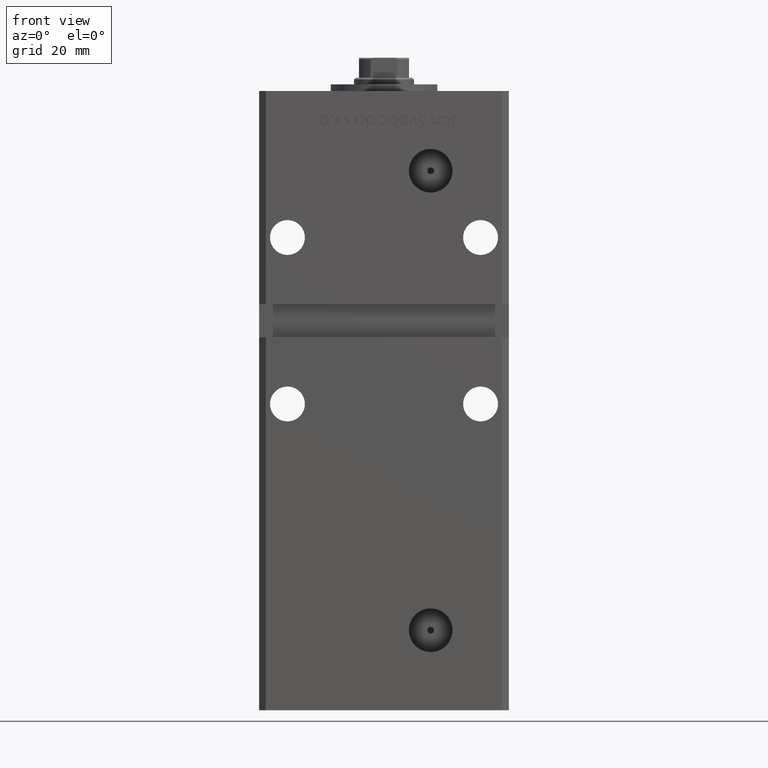
[diagram: clean part render]
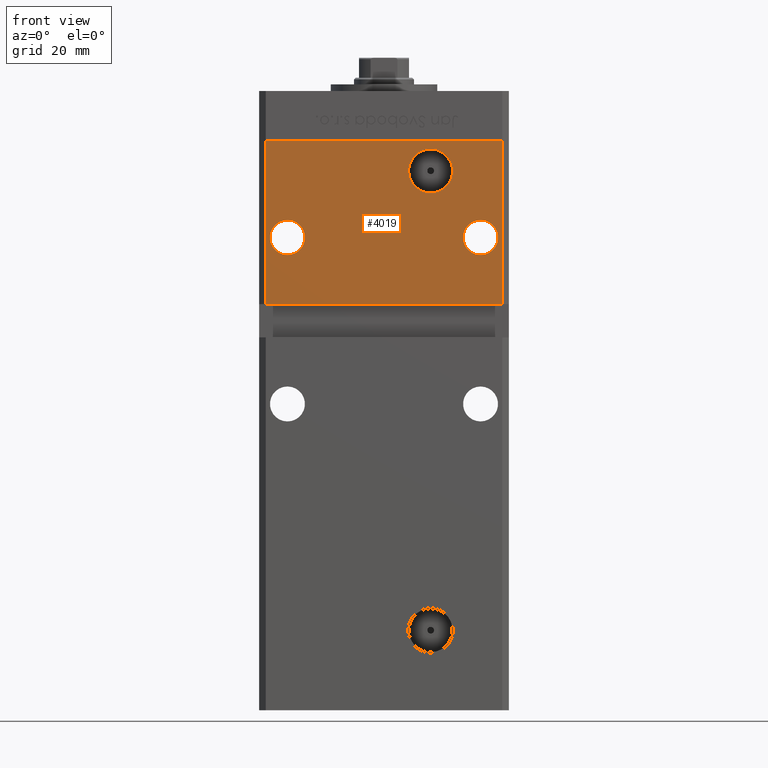
[diagram: same view with one face highlighted and labeled with its STEP entity id]
A machine part, front view. The second image highlights one B-rep face of the part: STEP entity #4019.
In plain terms, the highlighted planar face has unit normal (0, 1, 0).
Its self-contained STEP definition (entity closure, byte-faithful):
#222 = AXIS2_PLACEMENT_3D ( 'NONE', #34683, #51067, #6705 ) ;
#631 = DIRECTION ( 'NONE',  ( 0.000000000000000000, 0.000000000000000000, -1.000000000000000000 ) ) ;
#889 = FACE_BOUND ( 'NONE', #10872, .T. ) ;
#1277 = VECTOR ( 'NONE', #49108, 1000.000000000000000 ) ;
#1432 = FACE_BOUND ( 'NONE', #47463, .T. ) ;
#1582 = DIRECTION ( 'NONE',  ( 0.000000000000000000, 1.000000000000000000, 0.000000000000000000 ) ) ;
#1696 = PLANE ( 'NONE',  #28286 ) ;
#2164 = CIRCLE ( 'NONE', #32220, 5.250000000000004441 ) ;
#2235 = CARTESIAN_POINT ( 'NONE',  ( 35.49999999999999289, -32.50000000000000000, 107.0000000000000000 ) ) ;
#2451 = EDGE_CURVE ( 'NONE', #32535, #49584, #47933, .T. ) ;
#3877 = ORIENTED_EDGE ( 'NONE', *, *, #23490, .F. ) ;
#4019 = ADVANCED_FACE ( 'NONE', ( #889, #21351, #42034, #1432 ), #1696, .F. ) ;
#5009 = VERTEX_POINT ( 'NONE', #2235 ) ;
#6705 = DIRECTION ( 'NONE',  ( 0.000000000000000000, 0.000000000000000000, -1.000000000000000000 ) ) ;
#7835 = CARTESIAN_POINT ( 'NONE',  ( -28.99999999999999645, -32.50000000000000000, 121.7500000000000000 ) ) ;
#8893 = VERTEX_POINT ( 'NONE', #15536 ) ;
#9029 = ORIENTED_EDGE ( 'NONE', *, *, #22949, .T. ) ;
#9474 = CARTESIAN_POINT ( 'NONE',  ( -35.49999999999999289, -32.50000000000000000, 156.0000000000000000 ) ) ;
#9714 = CIRCLE ( 'NONE', #222, 6.580000000000002736 ) ;
#9717 = VERTEX_POINT ( 'NONE', #24852 ) ;
#9950 = EDGE_CURVE ( 'NONE', #20049, #8893, #16482, .T. ) ;
#10872 = EDGE_LOOP ( 'NONE', ( #30688, #23006 ) ) ;
#11051 = CARTESIAN_POINT ( 'NONE',  ( 13.99999999999997513, -32.50000000000000000, 153.5800000000000125 ) ) ;
#11330 = CIRCLE ( 'NONE', #41345, 5.250000000000004441 ) ;
#12074 = ORIENTED_EDGE ( 'NONE', *, *, #48635, .F. ) ;
#12514 = DIRECTION ( 'NONE',  ( 0.000000000000000000, 1.000000000000000000, 0.000000000000000000 ) ) ;
#13235 = VERTEX_POINT ( 'NONE', #7835 ) ;
#13765 = DIRECTION ( 'NONE',  ( 0.000000000000000000, 0.000000000000000000, 1.000000000000000000 ) ) ;
#13983 = DIRECTION ( 'NONE',  ( 0.000000000000000000, 0.000000000000000000, 1.000000000000000000 ) ) ;
#14297 = CARTESIAN_POINT ( 'NONE',  ( 13.99999999999997513, -32.50000000000000000, 147.0000000000000284 ) ) ;
#14737 = EDGE_CURVE ( 'NONE', #51844, #9717, #9714, .T. ) ;
#15536 = CARTESIAN_POINT ( 'NONE',  ( 35.49999999999999289, -32.50000000000000000, 156.0000000000000000 ) ) ;
#16085 = LINE ( 'NONE', #32454, #1277 ) ;
#16482 = LINE ( 'NONE', #9474, #36961 ) ;
#16907 = CIRCLE ( 'NONE', #32321, 5.250000000000004441 ) ;
#17179 = DIRECTION ( 'NONE',  ( 0.000000000000000000, 1.000000000000000000, 0.000000000000000000 ) ) ;
#18589 = EDGE_CURVE ( 'NONE', #9717, #51844, #33815, .T. ) ;
#19364 = CARTESIAN_POINT ( 'NONE',  ( -35.49999999999999289, -32.50000000000000000, 156.0000000000000000 ) ) ;
#19626 = AXIS2_PLACEMENT_3D ( 'NONE', #33005, #17179, #49407 ) ;
#20049 = VERTEX_POINT ( 'NONE', #20374 ) ;
#20374 = CARTESIAN_POINT ( 'NONE',  ( -35.49999999999999289, -32.50000000000000000, 156.0000000000000000 ) ) ;
#21094 = DIRECTION ( 'NONE',  ( -0.000000000000000000, 1.000000000000000000, -0.000000000000000000 ) ) ;
#21351 = FACE_BOUND ( 'NONE', #40073, .T. ) ;
#22104 = CARTESIAN_POINT ( 'NONE',  ( -28.99999999999999645, -32.50000000000000000, 127.0000000000000000 ) ) ;
#22949 = EDGE_CURVE ( 'NONE', #13235, #44002, #2164, .T. ) ;
#23006 = ORIENTED_EDGE ( 'NONE', *, *, #2451, .T. ) ;
#23490 = EDGE_CURVE ( 'NONE', #8893, #5009, #16085, .T. ) ;
#24592 = ORIENTED_EDGE ( 'NONE', *, *, #9950, .F. ) ;
#24852 = CARTESIAN_POINT ( 'NONE',  ( 13.99999999999997513, -32.50000000000000000, 140.4200000000000159 ) ) ;
#25387 = DIRECTION ( 'NONE',  ( 0.000000000000000000, 1.000000000000000000, 0.000000000000000000 ) ) ;
#26587 = EDGE_CURVE ( 'NONE', #20049, #40523, #35984, .T. ) ;
#26783 = CARTESIAN_POINT ( 'NONE',  ( 28.99999999999999645, -32.50000000000000000, 132.2500000000000000 ) ) ;
#27444 = ORIENTED_EDGE ( 'NONE', *, *, #26587, .T. ) ;
#28099 = ORIENTED_EDGE ( 'NONE', *, *, #14737, .T. ) ;
#28286 = AXIS2_PLACEMENT_3D ( 'NONE', #50371, #25387, #41760 ) ;
#28656 = ORIENTED_EDGE ( 'NONE', *, *, #52042, .T. ) ;
#28657 = CARTESIAN_POINT ( 'NONE',  ( -28.99999999999999645, -32.50000000000000000, 132.2500000000000000 ) ) ;
#30688 = ORIENTED_EDGE ( 'NONE', *, *, #32083, .T. ) ;
#31207 = CARTESIAN_POINT ( 'NONE',  ( -35.49999999999999289, -32.50000000000000000, 107.0000000000000000 ) ) ;
#32083 = EDGE_CURVE ( 'NONE', #49584, #32535, #16907, .T. ) ;
#32220 = AXIS2_PLACEMENT_3D ( 'NONE', #22104, #41430, #13765 ) ;
#32321 = AXIS2_PLACEMENT_3D ( 'NONE', #32934, #12514, #32675 ) ;
#32454 = CARTESIAN_POINT ( 'NONE',  ( 35.49999999999999289, -32.50000000000000000, 156.0000000000000000 ) ) ;
#32535 = VERTEX_POINT ( 'NONE', #50879 ) ;
#32675 = DIRECTION ( 'NONE',  ( 0.000000000000000000, 0.000000000000000000, 1.000000000000000000 ) ) ;
#32934 = CARTESIAN_POINT ( 'NONE',  ( 28.99999999999999645, -32.50000000000000000, 127.0000000000000000 ) ) ;
#33005 = CARTESIAN_POINT ( 'NONE',  ( 28.99999999999999645, -32.50000000000000000, 127.0000000000000000 ) ) ;
#33815 = CIRCLE ( 'NONE', #34675, 6.580000000000002736 ) ;
#34675 = AXIS2_PLACEMENT_3D ( 'NONE', #14297, #21094, #631 ) ;
#34683 = CARTESIAN_POINT ( 'NONE',  ( 13.99999999999997513, -32.50000000000000000, 147.0000000000000284 ) ) ;
#35467 = DIRECTION ( 'NONE',  ( -0.000000000000000000, -0.000000000000000000, -1.000000000000000000 ) ) ;
#35984 = LINE ( 'NONE', #19364, #38208 ) ;
#36961 = VECTOR ( 'NONE', #37143, 1000.000000000000000 ) ;
#37143 = DIRECTION ( 'NONE',  ( 1.000000000000000000, 0.000000000000000000, 0.000000000000000000 ) ) ;
#38208 = VECTOR ( 'NONE', #35467, 1000.000000000000000 ) ;
#38501 = LINE ( 'NONE', #50860, #43033 ) ;
#40073 = EDGE_LOOP ( 'NONE', ( #28656, #9029 ) ) ;
#40523 = VERTEX_POINT ( 'NONE', #31207 ) ;
#41345 = AXIS2_PLACEMENT_3D ( 'NONE', #50265, #1582, #13983 ) ;
#41430 = DIRECTION ( 'NONE',  ( 0.000000000000000000, 1.000000000000000000, 0.000000000000000000 ) ) ;
#41760 = DIRECTION ( 'NONE',  ( 0.000000000000000000, -0.000000000000000000, 1.000000000000000000 ) ) ;
#42034 = FACE_OUTER_BOUND ( 'NONE', #45188, .T. ) ;
#43033 = VECTOR ( 'NONE', #51847, 1000.000000000000000 ) ;
#44002 = VERTEX_POINT ( 'NONE', #28657 ) ;
#45188 = EDGE_LOOP ( 'NONE', ( #27444, #12074, #3877, #24592 ) ) ;
#47463 = EDGE_LOOP ( 'NONE', ( #48389, #28099 ) ) ;
#47933 = CIRCLE ( 'NONE', #19626, 5.250000000000004441 ) ;
#48389 = ORIENTED_EDGE ( 'NONE', *, *, #18589, .T. ) ;
#48635 = EDGE_CURVE ( 'NONE', #5009, #40523, #38501, .T. ) ;
#49108 = DIRECTION ( 'NONE',  ( -0.000000000000000000, -0.000000000000000000, -1.000000000000000000 ) ) ;
#49407 = DIRECTION ( 'NONE',  ( 0.000000000000000000, 0.000000000000000000, 1.000000000000000000 ) ) ;
#49584 = VERTEX_POINT ( 'NONE', #26783 ) ;
#50265 = CARTESIAN_POINT ( 'NONE',  ( -28.99999999999999645, -32.50000000000000000, 127.0000000000000000 ) ) ;
#50371 = CARTESIAN_POINT ( 'NONE',  ( -35.49999999999999289, -32.50000000000000000, 156.0000000000000000 ) ) ;
#50860 = CARTESIAN_POINT ( 'NONE',  ( -37.49999999999999289, -32.50000000000000000, 107.0000000000000000 ) ) ;
#50879 = CARTESIAN_POINT ( 'NONE',  ( 28.99999999999999645, -32.50000000000000000, 121.7500000000000000 ) ) ;
#51067 = DIRECTION ( 'NONE',  ( -0.000000000000000000, 1.000000000000000000, -0.000000000000000000 ) ) ;
#51844 = VERTEX_POINT ( 'NONE', #11051 ) ;
#51847 = DIRECTION ( 'NONE',  ( -1.000000000000000000, -0.000000000000000000, -0.000000000000000000 ) ) ;
#52042 = EDGE_CURVE ( 'NONE', #44002, #13235, #11330, .T. ) ;